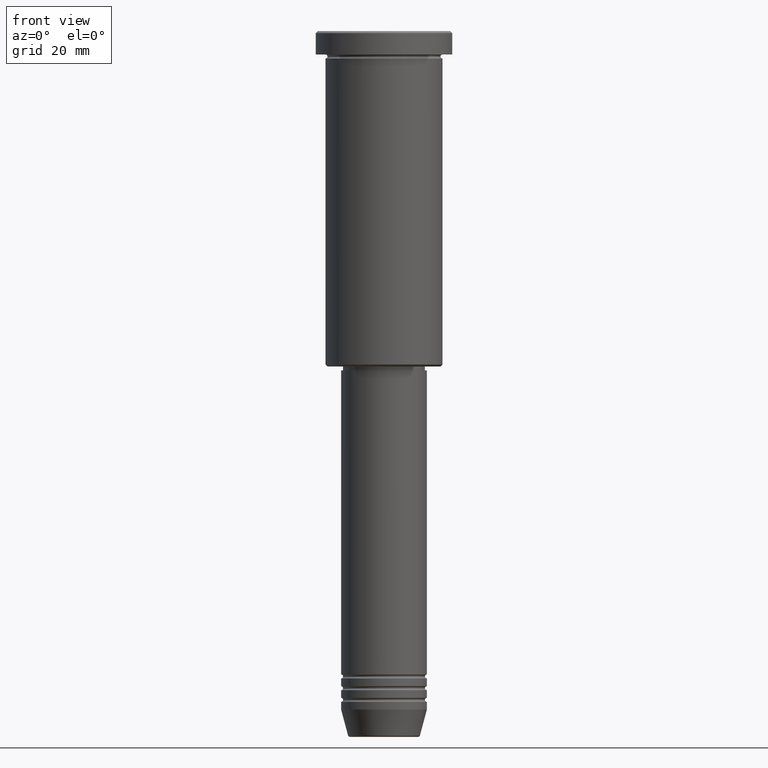
[diagram: clean part render]
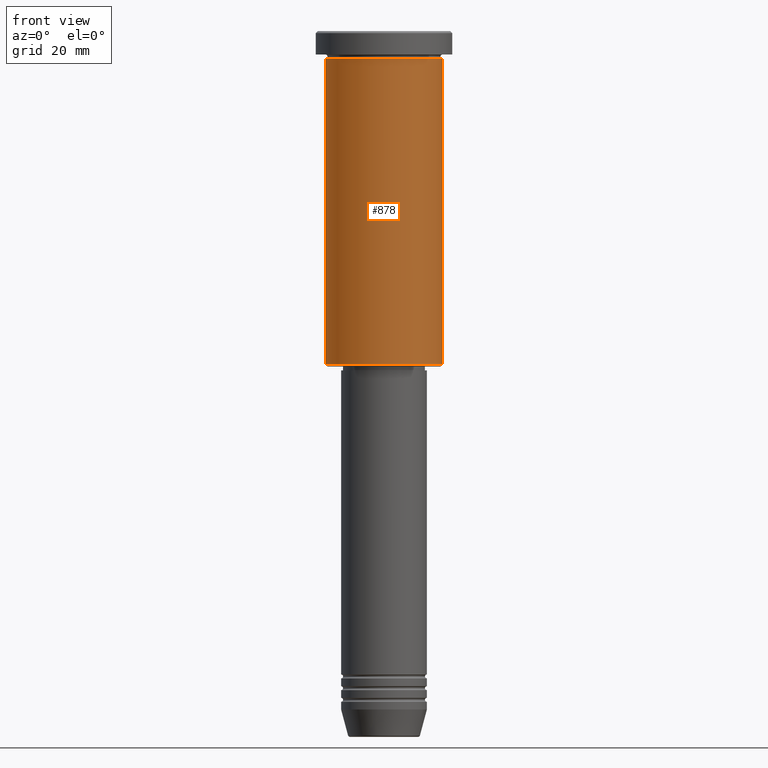
[diagram: same view with one face highlighted and labeled with its STEP entity id]
A machine part, front view. The second image highlights one B-rep face of the part: STEP entity #878.
In plain terms, the highlighted cylindrical surface (partial cylindrical patch) has radius 15 mm, axis along (-0, -0, 1).
Its self-contained STEP definition (entity closure, byte-faithful):
#42 = VERTEX_POINT ( 'NONE', #926 ) ;
#56 = EDGE_CURVE ( 'NONE', #42, #78, #573, .T. ) ;
#76 = FACE_OUTER_BOUND ( 'NONE', #432, .T. ) ;
#78 = VERTEX_POINT ( 'NONE', #361 ) ;
#102 = CARTESIAN_POINT ( 'NONE',  ( 0.000000000000000000, 0.000000000000000000, -6.999999999999995559 ) ) ;
#104 = ORIENTED_EDGE ( 'NONE', *, *, #127, .F. ) ;
#127 = EDGE_CURVE ( 'NONE', #899, #1013, #363, .T. ) ;
#133 = DIRECTION ( 'NONE',  ( -0.000000000000000000, -0.000000000000000000, 1.000000000000000000 ) ) ;
#268 = CARTESIAN_POINT ( 'NONE',  ( 0.000000000000000000, 0.000000000000000000, -85.49999999999998579 ) ) ;
#330 = AXIS2_PLACEMENT_3D ( 'NONE', #1155, #708, #434 ) ;
#361 = CARTESIAN_POINT ( 'NONE',  ( 15.00000000000000000, 0.000000000000000000, -85.49999999999998579 ) ) ;
#363 = CIRCLE ( 'NONE', #479, 15.00000000000000000 ) ;
#397 = EDGE_CURVE ( 'NONE', #78, #1013, #1142, .T. ) ;
#405 = CARTESIAN_POINT ( 'NONE',  ( 15.00000000000000000, 0.000000000000000000, -6.999999999999995559 ) ) ;
#429 = ORIENTED_EDGE ( 'NONE', *, *, #56, .T. ) ;
#432 = EDGE_LOOP ( 'NONE', ( #609, #429, #859, #104 ) ) ;
#434 = DIRECTION ( 'NONE',  ( 1.000000000000000000, 0.000000000000000000, 0.000000000000000000 ) ) ;
#479 = AXIS2_PLACEMENT_3D ( 'NONE', #102, #853, #935 ) ;
#526 = DIRECTION ( 'NONE',  ( -0.000000000000000000, -0.000000000000000000, 1.000000000000000000 ) ) ;
#573 = CIRCLE ( 'NONE', #752, 15.00000000000000000 ) ;
#598 = VECTOR ( 'NONE', #614, 1000.000000000000000 ) ;
#609 = ORIENTED_EDGE ( 'NONE', *, *, #711, .F. ) ;
#614 = DIRECTION ( 'NONE',  ( -0.000000000000000000, -0.000000000000000000, 1.000000000000000000 ) ) ;
#637 = DIRECTION ( 'NONE',  ( -1.000000000000000000, 0.000000000000000000, 0.000000000000000000 ) ) ;
#652 = LINE ( 'NONE', #704, #869 ) ;
#699 = CARTESIAN_POINT ( 'NONE',  ( 15.00000000000000000, 0.000000000000000000, 0.000000000000000000 ) ) ;
#704 = CARTESIAN_POINT ( 'NONE',  ( -15.00000000000000000, 1.836970198721029589E-15, 0.000000000000000000 ) ) ;
#708 = DIRECTION ( 'NONE',  ( -0.000000000000000000, -0.000000000000000000, 1.000000000000000000 ) ) ;
#711 = EDGE_CURVE ( 'NONE', #42, #899, #652, .T. ) ;
#752 = AXIS2_PLACEMENT_3D ( 'NONE', #268, #526, #637 ) ;
#853 = DIRECTION ( 'NONE',  ( -0.000000000000000000, -0.000000000000000000, 1.000000000000000000 ) ) ;
#859 = ORIENTED_EDGE ( 'NONE', *, *, #397, .T. ) ;
#869 = VECTOR ( 'NONE', #133, 1000.000000000000000 ) ;
#878 = ADVANCED_FACE ( 'NONE', ( #76 ), #898, .T. ) ;
#898 = CYLINDRICAL_SURFACE ( 'NONE', #330, 15.00000000000000000 ) ;
#899 = VERTEX_POINT ( 'NONE', #1103 ) ;
#926 = CARTESIAN_POINT ( 'NONE',  ( -15.00000000000000000, 1.836970198721029589E-15, -85.49999999999998579 ) ) ;
#935 = DIRECTION ( 'NONE',  ( 1.000000000000000000, 0.000000000000000000, 0.000000000000000000 ) ) ;
#1013 = VERTEX_POINT ( 'NONE', #405 ) ;
#1103 = CARTESIAN_POINT ( 'NONE',  ( -15.00000000000000000, 1.836970198721029589E-15, -6.999999999999995559 ) ) ;
#1142 = LINE ( 'NONE', #699, #598 ) ;
#1155 = CARTESIAN_POINT ( 'NONE',  ( 0.000000000000000000, 0.000000000000000000, 0.000000000000000000 ) ) ;